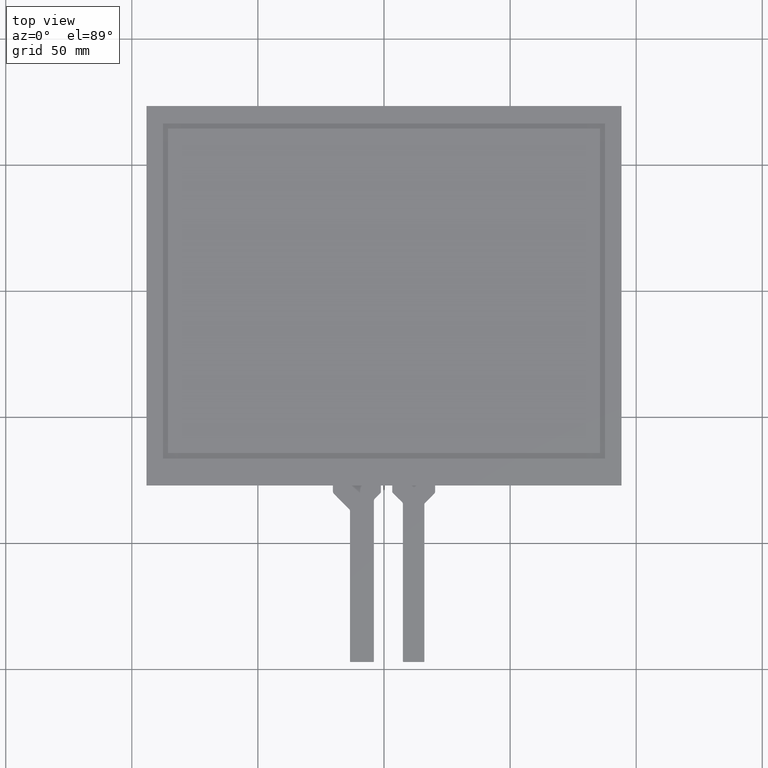
[diagram: clean part render]
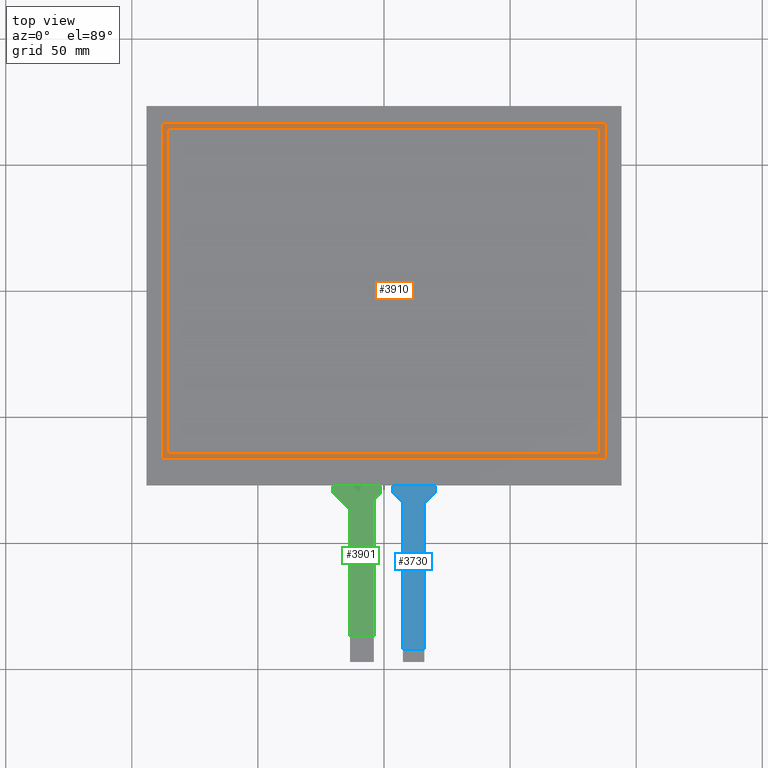
[diagram: same view with three faces highlighted in distinct colors, each labeled with its STEP entity id]
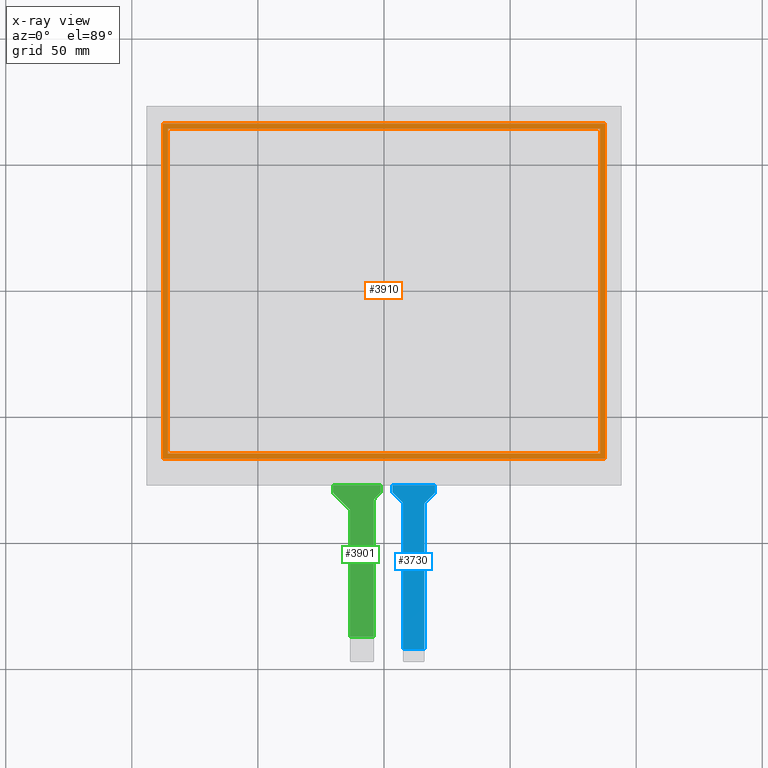
[diagram: x-ray of the same camera — body ghosted, the three highlighted faces saturated]
A machine part, top view with three faces highlighted in distinct colors.
The next image is the same camera in x-ray (body ghosted, the three faces saturated) — at least one of them is partly hidden behind the body in this view.
Their STEP definitions:

[orange] entity #3910 — the highlighted planar face has unit normal (0, 0, -1).
#46=FACE_BOUND('',#601,.T.);
#220=PLANE('',#4144);
#410=FACE_OUTER_BOUND('',#600,.T.);
#600=EDGE_LOOP('',(#3668,#3669,#3670,#3671));
#601=EDGE_LOOP('',(#3672,#3673,#3674,#3675));
#1106=LINE('',#6152,#1634);
#1110=LINE('',#6159,#1638);
#1113=LINE('',#6165,#1641);
#1115=LINE('',#6168,#1643);
#1118=LINE('',#6176,#1646);
#1122=LINE('',#6183,#1650);
#1125=LINE('',#6189,#1653);
#1127=LINE('',#6192,#1655);
#1634=VECTOR('',#5046,10.);
#1638=VECTOR('',#5052,10.);
#1641=VECTOR('',#5057,10.);
#1643=VECTOR('',#5061,10.);
#1646=VECTOR('',#5066,10.);
#1650=VECTOR('',#5072,10.);
#1653=VECTOR('',#5077,10.);
#1655=VECTOR('',#5081,10.);
#2038=VERTEX_POINT('',#6149);
#2039=VERTEX_POINT('',#6151);
#2041=VERTEX_POINT('',#6157);
#2043=VERTEX_POINT('',#6163);
#2046=VERTEX_POINT('',#6173);
#2047=VERTEX_POINT('',#6175);
#2049=VERTEX_POINT('',#6181);
#2051=VERTEX_POINT('',#6187);
#2578=EDGE_CURVE('',#2038,#2039,#1106,.T.);
#2582=EDGE_CURVE('',#2041,#2038,#1110,.T.);
#2585=EDGE_CURVE('',#2043,#2041,#1113,.T.);
#2587=EDGE_CURVE('',#2039,#2043,#1115,.T.);
#2590=EDGE_CURVE('',#2046,#2047,#1118,.T.);
#2594=EDGE_CURVE('',#2049,#2046,#1122,.T.);
#2597=EDGE_CURVE('',#2051,#2049,#1125,.T.);
#2599=EDGE_CURVE('',#2047,#2051,#1127,.T.);
#3668=ORIENTED_EDGE('',*,*,#2599,.F.);
#3669=ORIENTED_EDGE('',*,*,#2590,.F.);
#3670=ORIENTED_EDGE('',*,*,#2594,.F.);
#3671=ORIENTED_EDGE('',*,*,#2597,.F.);
#3672=ORIENTED_EDGE('',*,*,#2587,.F.);
#3673=ORIENTED_EDGE('',*,*,#2578,.F.);
#3674=ORIENTED_EDGE('',*,*,#2582,.F.);
#3675=ORIENTED_EDGE('',*,*,#2585,.F.);
#3910=ADVANCED_FACE('',(#410,#46),#220,.F.);
#4144=AXIS2_PLACEMENT_3D('',#6193,#5082,#5083);
#5046=DIRECTION('',(1.,0.,0.));
#5052=DIRECTION('',(0.,-1.,0.));
#5057=DIRECTION('',(-1.,0.,0.));
#5061=DIRECTION('',(0.,1.,0.));
#5066=DIRECTION('',(-1.33761810195802E-16,1.,0.));
#5072=DIRECTION('',(-1.,-1.51911930393408E-16,0.));
#5077=DIRECTION('',(1.33761810195802E-16,-1.,0.));
#5081=DIRECTION('',(1.,5.0637310131136E-17,0.));
#5082=DIRECTION('center_axis',(0.,0.,-1.));
#5083=DIRECTION('ref_axis',(-1.,0.,0.));
#6149=CARTESIAN_POINT('',(-85.7,-64.4,-0.1));
#6151=CARTESIAN_POINT('',(85.7,-64.4,-0.1));
#6152=CARTESIAN_POINT('',(85.7,-64.4,-0.1));
#6157=CARTESIAN_POINT('',(-85.7,64.4,-0.1));
#6159=CARTESIAN_POINT('',(-85.7,-64.4,-0.1));
#6163=CARTESIAN_POINT('',(85.7,64.4,-0.1));
#6165=CARTESIAN_POINT('',(-85.7,64.4,-0.1));
#6168=CARTESIAN_POINT('',(85.7,64.4,-0.1));
#6173=CARTESIAN_POINT('',(-87.7,-66.4,-0.1));
#6175=CARTESIAN_POINT('',(-87.7,66.4,-0.1));
#6176=CARTESIAN_POINT('',(-87.7,66.4,-0.1));
#6181=CARTESIAN_POINT('',(87.7,-66.4,-0.1));
#6183=CARTESIAN_POINT('',(-87.7,-66.4,-0.1));
#6187=CARTESIAN_POINT('',(87.7,66.4,-0.1));
#6189=CARTESIAN_POINT('',(87.7,-66.4,-0.1));
#6192=CARTESIAN_POINT('',(87.7,66.4,-0.1));
#6193=CARTESIAN_POINT('Origin',(0.,0.,-0.1));

[blue] entity #3730 — the highlighted planar face has unit normal (0, 0, 1).
#51=PLANE('',#3942);
#230=FACE_OUTER_BOUND('',#420,.T.);
#420=EDGE_LOOP('',(#2620,#2621,#2622,#2623,#2624,#2625,#2626,#2627,#2628,
#2629,#2630,#2631));
#614=LINE('',#5122,#1142);
#617=LINE('',#5128,#1145);
#618=LINE('',#5130,#1146);
#619=LINE('',#5132,#1147);
#620=LINE('',#5136,#1148);
#621=LINE('',#5140,#1149);
#622=LINE('',#5142,#1150);
#623=LINE('',#5144,#1151);
#1142=VECTOR('',#4164,10.);
#1145=VECTOR('',#4169,10.);
#1146=VECTOR('',#4170,10.);
#1147=VECTOR('',#4171,10.);
#1148=VECTOR('',#4174,10.);
#1149=VECTOR('',#4177,10.);
#1150=VECTOR('',#4178,10.);
#1151=VECTOR('',#4179,10.);
#1669=CIRCLE('',#3940,1.);
#1670=CIRCLE('',#3943,1.);
#1671=CIRCLE('',#3944,1.);
#1672=CIRCLE('',#3945,1.);
#1694=VERTEX_POINT('',#5115);
#1695=VERTEX_POINT('',#5117);
#1696=VERTEX_POINT('',#5121);
#1698=VERTEX_POINT('',#5127);
#1699=VERTEX_POINT('',#5129);
#1700=VERTEX_POINT('',#5131);
#1701=VERTEX_POINT('',#5133);
#1702=VERTEX_POINT('',#5135);
#1703=VERTEX_POINT('',#5137);
#1704=VERTEX_POINT('',#5139);
#1705=VERTEX_POINT('',#5141);
#1706=VERTEX_POINT('',#5143);
#2062=EDGE_CURVE('',#1694,#1695,#1669,.T.);
#2064=EDGE_CURVE('',#1696,#1695,#614,.T.);
#2067=EDGE_CURVE('',#1694,#1698,#617,.T.);
#2068=EDGE_CURVE('',#1699,#1698,#618,.T.);
#2069=EDGE_CURVE('',#1699,#1700,#619,.T.);
#2070=EDGE_CURVE('',#1701,#1700,#1670,.T.);
#2071=EDGE_CURVE('',#1701,#1702,#620,.T.);
#2072=EDGE_CURVE('',#1703,#1702,#1671,.T.);
#2073=EDGE_CURVE('',#1703,#1704,#621,.T.);
#2074=EDGE_CURVE('',#1704,#1705,#622,.T.);
#2075=EDGE_CURVE('',#1705,#1706,#623,.T.);
#2076=EDGE_CURVE('',#1696,#1706,#1672,.T.);
#2620=ORIENTED_EDGE('',*,*,#2062,.F.);
#2621=ORIENTED_EDGE('',*,*,#2067,.T.);
#2622=ORIENTED_EDGE('',*,*,#2068,.F.);
#2623=ORIENTED_EDGE('',*,*,#2069,.T.);
#2624=ORIENTED_EDGE('',*,*,#2070,.F.);
#2625=ORIENTED_EDGE('',*,*,#2071,.T.);
#2626=ORIENTED_EDGE('',*,*,#2072,.F.);
#2627=ORIENTED_EDGE('',*,*,#2073,.T.);
#2628=ORIENTED_EDGE('',*,*,#2074,.T.);
#2629=ORIENTED_EDGE('',*,*,#2075,.T.);
#2630=ORIENTED_EDGE('',*,*,#2076,.F.);
#2631=ORIENTED_EDGE('',*,*,#2064,.T.);
#3730=ADVANCED_FACE('',(#230),#51,.T.);
#3940=AXIS2_PLACEMENT_3D('',#5118,#4159,#4160);
#3942=AXIS2_PLACEMENT_3D('',#5126,#4167,#4168);
#3943=AXIS2_PLACEMENT_3D('',#5134,#4172,#4173);
#3944=AXIS2_PLACEMENT_3D('',#5138,#4175,#4176);
#3945=AXIS2_PLACEMENT_3D('',#5145,#4180,#4181);
#4159=DIRECTION('center_axis',(0.,0.,-1.));
#4160=DIRECTION('ref_axis',(0.925215014364889,-0.379443246340976,0.));
#4164=DIRECTION('',(0.702133177228051,0.712045645612444,0.));
#4167=DIRECTION('center_axis',(0.,0.,1.));
#4168=DIRECTION('ref_axis',(1.,0.,0.));
#4169=DIRECTION('',(1.53134210293125E-15,1.,0.));
#4170=DIRECTION('',(1.,1.41429684665625E-16,0.));
#4171=DIRECTION('',(0.,-1.,0.));
#4172=DIRECTION('center_axis',(0.,0.,-1.));
#4173=DIRECTION('ref_axis',(-0.922532703276164,-0.385918918149879,0.));
#4174=DIRECTION('',(0.712045645612444,-0.702133177228051,0.));
#4175=DIRECTION('center_axis',(0.,0.,1.));
#4176=DIRECTION('ref_axis',(0.922532703276161,0.385918918149887,0.));
#4177=DIRECTION('',(1.23256959858111E-16,-1.,0.));
#4178=DIRECTION('',(1.,0.,0.));
#4179=DIRECTION('',(-5.65808835610846E-16,1.,0.));
#4180=DIRECTION('center_axis',(0.,0.,1.));
#4181=DIRECTION('ref_axis',(-0.925215014364886,0.379443246340982,0.));
#5115=CARTESIAN_POINT('',(20.25,-79.5898864151038,-0.2));
#5117=CARTESIAN_POINT('',(19.9620456456125,-80.2920195923318,-0.2));
#5118=CARTESIAN_POINT('Origin',(19.25,-79.5898864151038,-0.2));
#5121=CARTESIAN_POINT('',(16.2879543543875,-84.0179804076682,-0.2));
#5122=CARTESIAN_POINT('',(16.,-84.31,-0.2));
#5126=CARTESIAN_POINT('Origin',(11.75,-112.1,-0.2));
#5127=CARTESIAN_POINT('',(20.25,-77.1,-0.2));
#5128=CARTESIAN_POINT('',(20.25,-80.,-0.2));
#5129=CARTESIAN_POINT('',(3.25000000000001,-77.1,-0.2));
#5130=CARTESIAN_POINT('',(52.975,-77.1,-0.2));
#5131=CARTESIAN_POINT('',(3.25000000000001,-79.4391367047056,-0.2));
#5132=CARTESIAN_POINT('',(3.25000000000001,-77.1,-0.2));
#5133=CARTESIAN_POINT('',(3.54786682277197,-80.1511823503181,-0.2));
#5134=CARTESIAN_POINT('Origin',(4.25000000000001,-79.4391367047056,-0.2));
#5135=CARTESIAN_POINT('',(7.20213317722806,-83.7545772474036,-0.2));
#5136=CARTESIAN_POINT('',(3.25000000000001,-79.8574621654501,-0.2));
#5137=CARTESIAN_POINT('',(7.50000000000001,-84.466622893016,-0.2));
#5138=CARTESIAN_POINT('Origin',(6.50000000000001,-84.466622893016,-0.2));
#5139=CARTESIAN_POINT('',(7.50000000000002,-142.1,-0.2));
#5140=CARTESIAN_POINT('',(7.50000000000001,-84.0482974322715,-0.2));
#5141=CARTESIAN_POINT('',(16.,-142.1,-0.2));
#5142=CARTESIAN_POINT('',(9.62500000000001,-142.1,-0.2));
#5143=CARTESIAN_POINT('',(16.,-84.7201135848962,-0.2));
#5144=CARTESIAN_POINT('',(16.,-147.1,-0.2));
#5145=CARTESIAN_POINT('Origin',(17.,-84.7201135848962,-0.2));

[green] entity #3901 — the highlighted planar face has unit normal (0, 0, 1).
#211=PLANE('',#4135);
#401=FACE_OUTER_BOUND('',#591,.T.);
#591=EDGE_LOOP('',(#3624,#3625,#3626,#3627,#3628,#3629,#3630,#3631,#3632,
#3633,#3634,#3635));
#638=LINE('',#5187,#1166);
#649=LINE('',#5213,#1177);
#658=LINE('',#5237,#1186);
#662=LINE('',#5246,#1190);
#1089=LINE('',#6116,#1617);
#1094=LINE('',#6126,#1622);
#1102=LINE('',#6142,#1630);
#1103=LINE('',#6144,#1631);
#1166=VECTOR('',#4220,10.);
#1177=VECTOR('',#4239,10.);
#1186=VECTOR('',#4260,10.);
#1190=VECTOR('',#4270,10.);
#1617=VECTOR('',#5007,10.);
#1622=VECTOR('',#5018,10.);
#1630=VECTOR('',#5038,10.);
#1631=VECTOR('',#5041,10.);
#1676=CIRCLE('',#3955,1.);
#1679=CIRCLE('',#3960,1.);
#1682=CIRCLE('',#3966,1.);
#1683=CIRCLE('',#3969,1.);
#1717=VERTEX_POINT('',#5177);
#1718=VERTEX_POINT('',#5178);
#1721=VERTEX_POINT('',#5186);
#1729=VERTEX_POINT('',#5203);
#1730=VERTEX_POINT('',#5205);
#1732=VERTEX_POINT('',#5211);
#1739=VERTEX_POINT('',#5230);
#1740=VERTEX_POINT('',#5232);
#1741=VERTEX_POINT('',#5236);
#1742=VERTEX_POINT('',#5240);
#1743=VERTEX_POINT('',#5241);
#2031=VERTEX_POINT('',#6114);
#2092=EDGE_CURVE('',#1717,#1718,#1676,.T.);
#2096=EDGE_CURVE('',#1721,#1718,#638,.T.);
#2105=EDGE_CURVE('',#1729,#1730,#1679,.T.);
#2109=EDGE_CURVE('',#1729,#1732,#649,.T.);
#2119=EDGE_CURVE('',#1739,#1740,#1682,.T.);
#2121=EDGE_CURVE('',#1741,#1740,#658,.T.);
#2123=EDGE_CURVE('',#1742,#1743,#1683,.T.);
#2126=EDGE_CURVE('',#1739,#1743,#662,.T.);
#2561=EDGE_CURVE('',#1742,#2031,#1089,.T.);
#2566=EDGE_CURVE('',#2031,#1721,#1094,.T.);
#2574=EDGE_CURVE('',#1717,#1730,#1102,.T.);
#2575=EDGE_CURVE('',#1741,#1732,#1103,.T.);
#3624=ORIENTED_EDGE('',*,*,#2105,.F.);
#3625=ORIENTED_EDGE('',*,*,#2109,.T.);
#3626=ORIENTED_EDGE('',*,*,#2575,.F.);
#3627=ORIENTED_EDGE('',*,*,#2121,.T.);
#3628=ORIENTED_EDGE('',*,*,#2119,.F.);
#3629=ORIENTED_EDGE('',*,*,#2126,.T.);
#3630=ORIENTED_EDGE('',*,*,#2123,.F.);
#3631=ORIENTED_EDGE('',*,*,#2561,.T.);
#3632=ORIENTED_EDGE('',*,*,#2566,.T.);
#3633=ORIENTED_EDGE('',*,*,#2096,.T.);
#3634=ORIENTED_EDGE('',*,*,#2092,.F.);
#3635=ORIENTED_EDGE('',*,*,#2574,.T.);
#3901=ADVANCED_FACE('',(#401),#211,.T.);
#3955=AXIS2_PLACEMENT_3D('',#5179,#4212,#4213);
#3960=AXIS2_PLACEMENT_3D('',#5206,#4232,#4233);
#3966=AXIS2_PLACEMENT_3D('',#5233,#4255,#4256);
#3969=AXIS2_PLACEMENT_3D('',#5242,#4264,#4265);
#4135=AXIS2_PLACEMENT_3D('',#6143,#5039,#5040);
#4212=DIRECTION('center_axis',(0.,0.,1.));
#4213=DIRECTION('ref_axis',(-0.923030632954617,0.384726462083646,0.));
#4220=DIRECTION('',(-5.17391683246526E-16,1.,0.));
#4232=DIRECTION('center_axis',(0.,0.,-1.));
#4233=DIRECTION('ref_axis',(0.923030632954615,-0.384726462083652,0.));
#4239=DIRECTION('',(0.,1.,0.));
#4255=DIRECTION('center_axis',(0.,0.,-1.));
#4256=DIRECTION('ref_axis',(-0.924723910046381,-0.380638529563853,0.));
#4260=DIRECTION('',(0.,-1.,0.));
#4264=DIRECTION('center_axis',(0.,0.,1.));
#4265=DIRECTION('ref_axis',(0.924723910046378,0.380638529563862,0.));
#4270=DIRECTION('',(0.703971098745192,-0.710228619622926,0.));
#5007=DIRECTION('',(7.36588505307783E-17,-1.,0.));
#5018=DIRECTION('',(1.,0.,0.));
#5038=DIRECTION('',(0.710228619622924,0.703971098745194,0.));
#5039=DIRECTION('center_axis',(0.,0.,1.));
#5040=DIRECTION('ref_axis',(1.,0.,0.));
#5041=DIRECTION('',(1.,1.41429684665625E-16,0.));
#5177=CARTESIAN_POINT('',(-3.70397109874523,-82.4323502080074,-0.2));
#5178=CARTESIAN_POINT('',(-4.00000000000004,-83.1425788276303,-0.2));
#5179=CARTESIAN_POINT('Origin',(-3.00000000000004,-83.1425788276303,-0.2));
#5186=CARTESIAN_POINT('',(-4.00000000000001,-137.1,-0.2));
#5187=CARTESIAN_POINT('',(-4.00000000000001,-147.1,-0.2));
#5203=CARTESIAN_POINT('',(-1.25000000000003,-79.5831920974799,-0.2));
#5205=CARTESIAN_POINT('',(-1.54602890125483,-80.2934207171028,-0.2));
#5206=CARTESIAN_POINT('Origin',(-2.25000000000003,-79.5831920974799,-0.2));
#5211=CARTESIAN_POINT('',(-1.25000000000003,-77.1,-0.2));
#5213=CARTESIAN_POINT('',(-1.25000000000003,-80.,-0.2));
#5230=CARTESIAN_POINT('',(-19.960228619623,-80.2923471259804,-0.2));
#5232=CARTESIAN_POINT('',(-20.25,-79.5883760272352,-0.2));
#5233=CARTESIAN_POINT('Origin',(-19.25,-79.5883760272352,-0.2));
#5236=CARTESIAN_POINT('',(-20.25,-77.1,-0.2));
#5237=CARTESIAN_POINT('',(-20.25,-77.1,-0.2));
#5240=CARTESIAN_POINT('',(-13.5,-87.2216239727648,-0.2));
#5241=CARTESIAN_POINT('',(-13.7897713803771,-86.5176528740196,-0.2));
#5242=CARTESIAN_POINT('Origin',(-14.5,-87.2216239727648,-0.2));
#5246=CARTESIAN_POINT('',(-20.25,-80.,-0.2));
#6114=CARTESIAN_POINT('',(-13.5,-137.1,-0.2));
#6116=CARTESIAN_POINT('',(-13.5,-86.81,-0.2));
#6126=CARTESIAN_POINT('',(-7.37500000000002,-137.1,-0.2));
#6142=CARTESIAN_POINT('',(-4.00000000000004,-82.7257709251102,-0.2));
#6143=CARTESIAN_POINT('Origin',(-10.75,-112.1,-0.2));
#6144=CARTESIAN_POINT('',(41.725,-77.1,-0.2));